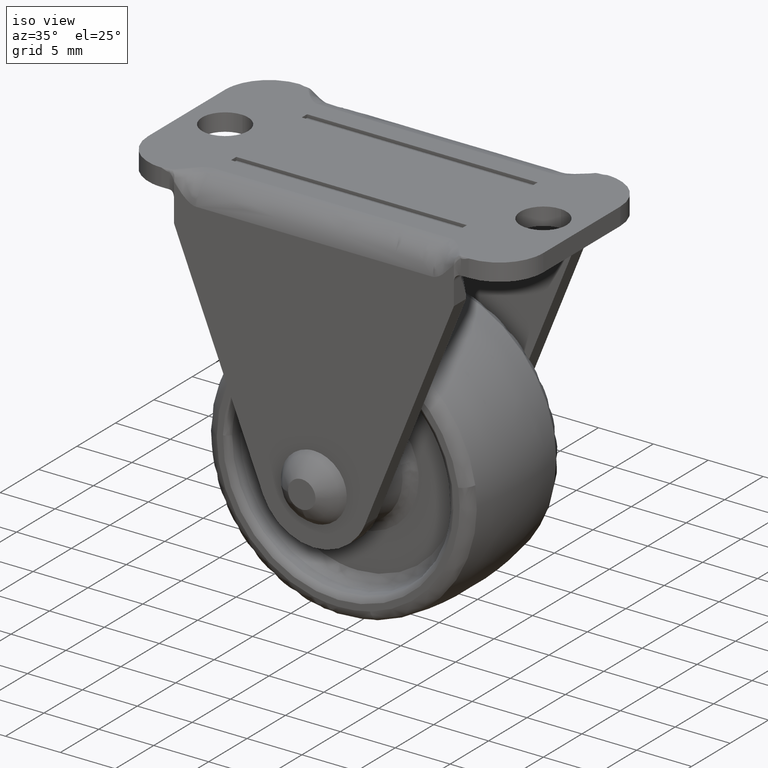
[diagram: clean part render]
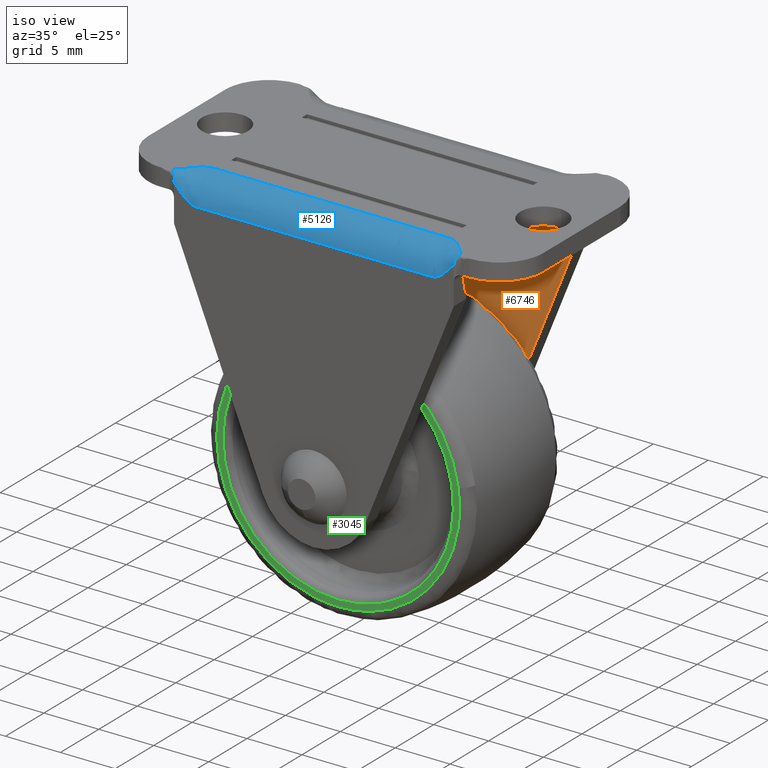
[diagram: same view with three faces highlighted in distinct colors, each labeled with its STEP entity id]
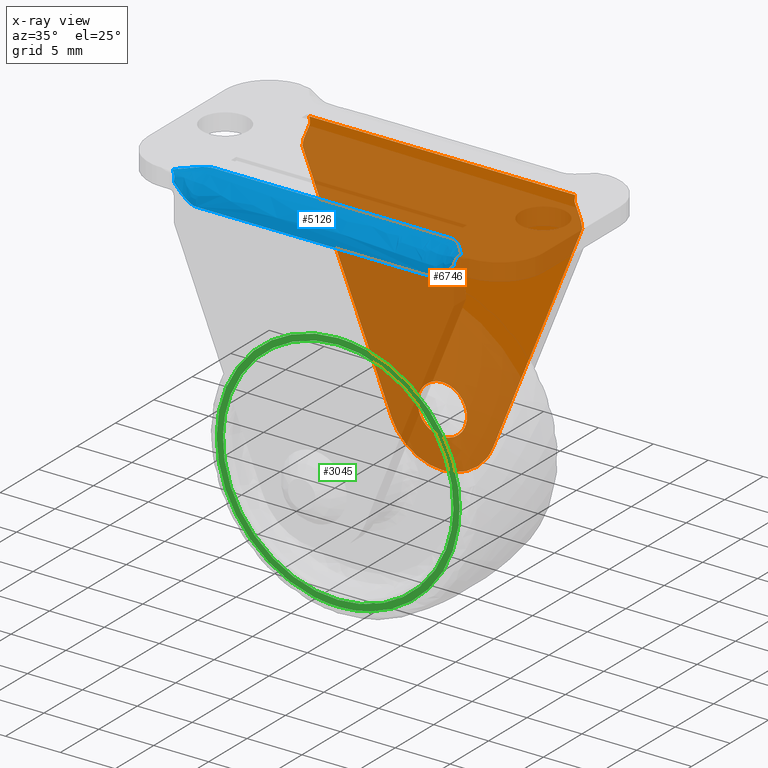
[diagram: x-ray of the same camera — body ghosted, the three highlighted faces saturated]
A machine part, iso view with three faces highlighted in distinct colors.
The next image is the same camera in x-ray (body ghosted, the three faces saturated) — at least one of them is partly hidden behind the body in this view.
Their STEP definitions:

[orange] entity #6746 — the highlighted face is a freeform B-spline surface patch.
#3757=CARTESIAN_POINT('',(0.0,7.550002999999999,2.250000000000000));
#3758=VERTEX_POINT('',#3757);
#3759=CARTESIAN_POINT('',(-2.243064283186967,7.550003000000139,0.176529378512446));
#3760=VERTEX_POINT('',#3759);
#3761=CARTESIAN_POINT('',(0.0,7.550002999999999,2.250000000000000));
#3762=CARTESIAN_POINT('',(-2.079881942443490,7.550002999999999,2.250000000000000));
#3763=CARTESIAN_POINT('',(-2.243064283186967,7.550003000000140,0.176529378512446));
#3771=(BOUNDED_CURVE()B_SPLINE_CURVE(2,(#3761,#3762,#3763),.UNSPECIFIED.,.F.,.U.)B_SPLINE_CURVE_WITH_KNOTS((3,3),(0.0,0.236331574757071),.UNSPECIFIED.)CURVE()GEOMETRIC_REPRESENTATION_ITEM()RATIONAL_B_SPLINE_CURVE((1.0,0.723120337448598,0.969723928249029))REPRESENTATION_ITEM(''));
#3772=EDGE_CURVE('',#3758,#3760,#3771,.T.);
#3813=CARTESIAN_POINT('',(2.243064283186967,7.550003000000140,-0.176529378512446));
#3814=VERTEX_POINT('',#3813);
#3820=CARTESIAN_POINT('',(2.243064283186967,7.550003000000140,-0.176529378512446));
#3821=CARTESIAN_POINT('',(2.250000000000000,7.550003000000000,-0.088400939007160));
#3822=CARTESIAN_POINT('',(2.250000000000000,7.550002999999999,0.0));
#3823=CARTESIAN_POINT('',(2.250000000000000,7.550002999999999,2.250000000000000));
#3824=CARTESIAN_POINT('',(0.0,7.550002999999999,2.250000000000000));
#3832=(BOUNDED_CURVE()B_SPLINE_CURVE(2,(#3820,#3821,#3822,#3823,#3824),.UNSPECIFIED.,.F.,.U.)B_SPLINE_CURVE_WITH_KNOTS((3,2,3),(0.736331574757071,0.750000000000000,1.0),.UNSPECIFIED.)CURVE()GEOMETRIC_REPRESENTATION_ITEM()RATIONAL_B_SPLINE_CURVE((0.969723928249029,0.983986443737950,1.0,0.707106781186547,1.0))REPRESENTATION_ITEM(''));
#3833=EDGE_CURVE('',#3814,#3758,#3832,.T.);
#3860=CARTESIAN_POINT('',(0.0,7.550002999999999,-2.250000000000000));
#3861=VERTEX_POINT('',#3860);
#3862=CARTESIAN_POINT('',(-2.243064283186967,7.550003000000140,0.176529378512446));
#3863=CARTESIAN_POINT('',(-2.250000000000000,7.550003000000000,0.088400939007159));
#3864=CARTESIAN_POINT('',(-2.250000000000000,7.550002999999999,0.0));
#3865=CARTESIAN_POINT('',(-2.250000000000000,7.550002999999999,-2.250000000000000));
#3866=CARTESIAN_POINT('',(0.0,7.550002999999999,-2.250000000000000));
#3874=(BOUNDED_CURVE()B_SPLINE_CURVE(2,(#3862,#3863,#3864,#3865,#3866),.UNSPECIFIED.,.F.,.U.)B_SPLINE_CURVE_WITH_KNOTS((3,2,3),(0.236331574757071,0.250000000000000,0.500000000000000),.UNSPECIFIED.)CURVE()GEOMETRIC_REPRESENTATION_ITEM()RATIONAL_B_SPLINE_CURVE((0.969723928249029,0.983986443737950,1.0,0.707106781186547,1.0))REPRESENTATION_ITEM(''));
#3875=EDGE_CURVE('',#3760,#3861,#3874,.T.);
#3877=CARTESIAN_POINT('',(0.0,7.550002999999999,-2.250000000000000));
#3878=CARTESIAN_POINT('',(2.079881942443490,7.550002999999999,-2.250000000000001));
#3879=CARTESIAN_POINT('',(2.243064283186967,7.550003000000140,-0.176529378512446));
#3887=(BOUNDED_CURVE()B_SPLINE_CURVE(2,(#3877,#3878,#3879),.UNSPECIFIED.,.F.,.U.)B_SPLINE_CURVE_WITH_KNOTS((3,3),(0.500000000000000,0.736331574757071),.UNSPECIFIED.)CURVE()GEOMETRIC_REPRESENTATION_ITEM()RATIONAL_B_SPLINE_CURVE((1.0,0.723120337448598,0.969723928249029))REPRESENTATION_ITEM(''));
#3888=EDGE_CURVE('',#3861,#3814,#3887,.T.);
#4400=CARTESIAN_POINT('',(12.050000000000001,7.550002999999999,20.399999999999750));
#4401=VERTEX_POINT('',#4400);
#4415=CARTESIAN_POINT('',(12.750000000000000,7.550002999999999,18.300030347964199));
#4416=VERTEX_POINT('',#4415);
#4417=CARTESIAN_POINT('',(12.750000000000000,7.550002999999999,18.300030347964199));
#4418=CARTESIAN_POINT('',(12.716666666666660,7.550002999999999,18.475027818967199));
#4419=CARTESIAN_POINT('',(12.683333333333341,7.550002999999999,18.650025289970149));
#4420=CARTESIAN_POINT('',(12.650000000000000,7.550002999999999,18.825022760973098));
#4421=CARTESIAN_POINT('',(12.616666666666660,7.550002999999999,19.000020231976048));
#4422=CARTESIAN_POINT('',(12.516666666666660,7.550002999999999,19.175017702979002));
#4423=CARTESIAN_POINT('',(12.449999999999999,7.550002999999999,19.350015173981951));
#4424=CARTESIAN_POINT('',(12.383333333333340,7.550002999999999,19.525012644984951));
#4425=CARTESIAN_POINT('',(12.316666666666659,7.550002999999999,19.700010115987901));
#4426=CARTESIAN_POINT('',(12.250000000000000,7.550002999999999,19.875007586990900));
#4427=CARTESIAN_POINT('',(12.183333333333341,7.550002999999999,20.050005057993850));
#4428=CARTESIAN_POINT('',(12.050000000000001,7.550002999999999,20.225002528996800));
#4429=CARTESIAN_POINT('',(12.050000000000001,7.550002999999999,20.399999999999750));
#4430=B_SPLINE_CURVE_WITH_KNOTS('',3,(#4417,#4418,#4419,#4420,#4421,#4422,#4423,#4424,#4425,#4426,#4427,#4428,#4429),.UNSPECIFIED.,.F.,.U.,(4,3,3,3,4),(0.0,0.249999999999987,0.499999999999974,0.750000000000013,1.0),.UNSPECIFIED.);
#4431=EDGE_CURVE('',#4416,#4401,#4430,.T.);
#4490=CARTESIAN_POINT('',(12.106813741931679,7.550002999999999,20.899999999999999));
#4491=VERTEX_POINT('',#4490);
#4506=CARTESIAN_POINT('',(12.050000000000001,7.550002999999999,20.399999999999750));
#4507=CARTESIAN_POINT('',(12.050061298596090,7.550002999999999,20.666828715081898));
#4508=CARTESIAN_POINT('',(12.106813741931679,7.550002999999999,20.899999999999999));
#4509=QUASI_UNIFORM_CURVE('',2,(#4506,#4507,#4508),.UNSPECIFIED.,.F.,.U.);
#4510=EDGE_CURVE('',#4401,#4491,#4509,.T.);
#4756=CARTESIAN_POINT('',(-12.750000000000000,7.550002999999999,18.299998999999900));
#4757=VERTEX_POINT('',#4756);
#4776=CARTESIAN_POINT('',(-12.050000000000120,7.550002999999999,20.399999999999700));
#4777=VERTEX_POINT('',#4776);
#4778=CARTESIAN_POINT('',(-12.050000000000120,7.550002999999999,20.399999999999700));
#4779=CARTESIAN_POINT('',(-12.050000000000001,7.550002999999999,20.224999916666398));
#4780=CARTESIAN_POINT('',(-12.183333333333421,7.550002999999999,20.049999833333050));
#4781=CARTESIAN_POINT('',(-12.250000000000000,7.550002999999999,19.874999749999748));
#4782=CARTESIAN_POINT('',(-12.316666666666761,7.550002999999999,19.699999666666450));
#4783=CARTESIAN_POINT('',(-12.383333333333439,7.550002999999999,19.524999583333152));
#4784=CARTESIAN_POINT('',(-12.449999999999999,7.550002999999999,19.349999499999850));
#4785=CARTESIAN_POINT('',(-12.516666666666760,7.550002999999999,19.174999416666498));
#4786=CARTESIAN_POINT('',(-12.616666666666781,7.550002999999999,18.999999333333200));
#4787=CARTESIAN_POINT('',(-12.650000000000000,7.550002999999999,18.824999249999902));
#4788=CARTESIAN_POINT('',(-12.683333333333421,7.550002999999999,18.649999166666600));
#4789=CARTESIAN_POINT('',(-12.716666666666759,7.550002999999999,18.474999083333248));
#4790=CARTESIAN_POINT('',(-12.750000000000000,7.550002999999999,18.299998999999900));
#4791=B_SPLINE_CURVE_WITH_KNOTS('',3,(#4778,#4779,#4780,#4781,#4782,#4783,#4784,#4785,#4786,#4787,#4788,#4789,#4790),.UNSPECIFIED.,.F.,.U.,(4,3,3,3,4),(0.0,0.250000000000026,0.500000000000000,0.749999999999974,1.0),.UNSPECIFIED.);
#4792=EDGE_CURVE('',#4777,#4757,#4791,.T.);
#4850=CARTESIAN_POINT('',(-12.106813741919900,7.550002999999999,20.899999999999999));
#4851=VERTEX_POINT('',#4850);
#4878=CARTESIAN_POINT('',(-12.106813741919900,7.550002999999999,20.899999999999999));
#4879=CARTESIAN_POINT('',(-12.050061298595869,7.550002999999999,20.666828715092301));
#4880=CARTESIAN_POINT('',(-12.050000000000120,7.550002999999999,20.399999999999700));
#4881=QUASI_UNIFORM_CURVE('',2,(#4878,#4879,#4880),.UNSPECIFIED.,.F.,.U.);
#4882=EDGE_CURVE('',#4851,#4777,#4881,.T.);
#5980=CARTESIAN_POINT('',(-4.638816999999910,7.550002999999999,-1.865843000000095));
#5981=VERTEX_POINT('',#5980);
#5982=CARTESIAN_POINT('',(-12.750000000000000,7.550002999999999,18.299998999999900));
#5983=CARTESIAN_POINT('',(-4.638816999999910,7.550002999999999,-1.865843000000095));
#5984=QUASI_UNIFORM_CURVE('',1,(#5982,#5983),.UNSPECIFIED.,.F.,.U.);
#5985=EDGE_CURVE('',#4757,#5981,#5984,.T.);
#6014=CARTESIAN_POINT('',(4.638817896110660,7.550002999999999,-1.865842578226655));
#6015=VERTEX_POINT('',#6014);
#6016=CARTESIAN_POINT('',(4.638817896110660,7.550002999999999,-1.865842578226655));
#6017=CARTESIAN_POINT('',(12.750000000000000,7.550002999999999,18.300030347964199));
#6018=QUASI_UNIFORM_CURVE('',1,(#6016,#6017),.UNSPECIFIED.,.F.,.U.);
#6019=EDGE_CURVE('',#6015,#4416,#6018,.T.);
#6063=CARTESIAN_POINT('',(-4.638816999999910,7.550002999999999,-1.865843000000095));
#6064=CARTESIAN_POINT('',(-3.378184820104728,7.550002999999999,-5.000000245157066));
#6065=CARTESIAN_POINT('',(0.000000362853227,7.550002999999999,-4.999999999999987));
#6066=CARTESIAN_POINT('',(3.378185545811182,7.550002999999999,-4.999999754842907));
#6067=CARTESIAN_POINT('',(4.638817896110658,7.550002999999999,-1.865842578226655));
#6075=(BOUNDED_CURVE()B_SPLINE_CURVE(2,(#6063,#6064,#6065,#6066,#6067),.UNSPECIFIED.,.F.,.U.)B_SPLINE_CURVE_WITH_KNOTS((3,2,3),(0.0,0.500000000000000,1.0),.UNSPECIFIED.)CURVE()GEOMETRIC_REPRESENTATION_ITEM()RATIONAL_B_SPLINE_CURVE((1.0,0.828603820584280,1.0,0.828603820584280,1.0))REPRESENTATION_ITEM(''));
#6076=EDGE_CURVE('',#5981,#6015,#6075,.T.);
#6166=CARTESIAN_POINT('',(-12.106813741919900,7.550002999999999,20.899999999999999));
#6167=CARTESIAN_POINT('',(12.106813741931679,7.550002999999999,20.899999999999999));
#6168=QUASI_UNIFORM_CURVE('',1,(#6166,#6167),.UNSPECIFIED.,.F.,.U.);
#6169=EDGE_CURVE('',#4851,#4491,#6168,.T.);
#6725=CARTESIAN_POINT('',(-14.023724950576050,7.550002999999999,-6.293704857267706));
#6726=CARTESIAN_POINT('',(-14.023724950576050,7.550002999999999,22.193703699447550));
#6727=CARTESIAN_POINT('',(14.023725634539350,7.550002999999999,-6.293704857267706));
#6728=CARTESIAN_POINT('',(14.023725634539350,7.550002999999999,22.193703699447550));
#6729=B_SPLINE_SURFACE_WITH_KNOTS('',1,1,((#6725,#6727),(#6726,#6728)),.UNSPECIFIED.,.F.,.F.,.U.,(2,2),(2,2),(0.0,28.487408556715259),(0.0,28.047450585115410),.UNSPECIFIED.);
#6730=ORIENTED_EDGE('',*,*,#6019,.T.);
#6731=ORIENTED_EDGE('',*,*,#4431,.T.);
#6732=ORIENTED_EDGE('',*,*,#4510,.T.);
#6733=ORIENTED_EDGE('',*,*,#6169,.F.);
#6734=ORIENTED_EDGE('',*,*,#4882,.T.);
#6735=ORIENTED_EDGE('',*,*,#4792,.T.);
#6736=ORIENTED_EDGE('',*,*,#5985,.T.);
#6737=ORIENTED_EDGE('',*,*,#6076,.T.);
#6738=EDGE_LOOP('',(#6730,#6731,#6732,#6733,#6734,#6735,#6736,#6737));
#6739=FACE_OUTER_BOUND('',#6738,.T.);
#6740=ORIENTED_EDGE('',*,*,#3888,.F.);
#6741=ORIENTED_EDGE('',*,*,#3875,.F.);
#6742=ORIENTED_EDGE('',*,*,#3772,.F.);
#6743=ORIENTED_EDGE('',*,*,#3833,.F.);
#6744=EDGE_LOOP('',(#6740,#6741,#6742,#6743));
#6745=FACE_BOUND('',#6744,.T.);
#6746=ADVANCED_FACE('',(#6739,#6745),#6729,.F.);

[blue] entity #5126 — the highlighted face is a freeform B-spline surface patch.
#4971=CARTESIAN_POINT('',(13.119193356339739,-8.765342525882272,22.500000000000000));
#4972=VERTEX_POINT('',#4971);
#4973=CARTESIAN_POINT('',(12.750010098916700,-9.149999999959778,21.700051119865051));
#4974=VERTEX_POINT('',#4973);
#4975=CARTESIAN_POINT('',(13.119193356339739,-8.765342525882272,22.500000000000000));
#4976=CARTESIAN_POINT('',(13.106264940669231,-8.787804500059718,22.496881243281951));
#4977=CARTESIAN_POINT('',(13.078835623221281,-8.835460503387800,22.490264394764520));
#4978=CARTESIAN_POINT('',(13.025563949204910,-8.891604308115408,22.444673762511659));
#4979=CARTESIAN_POINT('',(12.964703336439060,-8.925338805306527,22.391132943694249));
#4980=CARTESIAN_POINT('',(12.906280853361730,-8.953884793367156,22.331644475958729));
#4981=CARTESIAN_POINT('',(12.861227089343091,-8.988466214337796,22.265223782407620));
#4982=CARTESIAN_POINT('',(12.822134076153770,-9.020572426417933,22.194541004975630));
#4983=CARTESIAN_POINT('',(12.792954787310590,-9.054463846548313,22.117479034663830));
#4984=CARTESIAN_POINT('',(12.773925178751149,-9.088782634563653,22.032891903292871));
#4985=CARTESIAN_POINT('',(12.760121559183069,-9.120349544626690,21.932932896830469));
#4986=CARTESIAN_POINT('',(12.751606499225041,-9.144736791061142,21.820253420873811));
#4987=CARTESIAN_POINT('',(12.750549732196300,-9.148220809730784,21.740691985035198));
#4988=CARTESIAN_POINT('',(12.750010098916700,-9.149999999959778,21.700051119865051));
#4989=B_SPLINE_CURVE_WITH_KNOTS('',3,(#4975,#4976,#4977,#4978,#4979,#4980,#4981,#4982,#4983,#4984,#4985,#4986,#4987,#4988),.UNSPECIFIED.,.F.,.U.,(4,1,1,1,1,1,1,1,1,1,1,4),(0.000016216813288,0.074501459441041,0.158046358888956,0.250892721819858,0.327604096867035,0.411557584784858,0.502142679317179,0.578043451525392,0.667934094113139,0.770568315289101,0.882803924873207,1.000000000000000),.UNSPECIFIED.);
#4990=EDGE_CURVE('',#4972,#4974,#4989,.T.);
#5014=CARTESIAN_POINT('',(-13.276623676621041,-8.942451636198626,22.500000000000000));
#5015=CARTESIAN_POINT('',(-13.276623676621041,-9.150000000000079,22.499999999999808));
#5016=CARTESIAN_POINT('',(-13.276623676621041,-9.150000000000002,22.292451636198471));
#5017=CARTESIAN_POINT('',(-13.101082451080719,-8.744967757465805,22.500000000000000));
#5018=CARTESIAN_POINT('',(-13.101082451080723,-9.150000000000079,22.499999999999808));
#5019=CARTESIAN_POINT('',(-13.101082451080719,-9.150000000000002,22.094967757465550));
#5020=CARTESIAN_POINT('',(-12.925541225540391,-8.547483878732949,22.500000000000000));
#5021=CARTESIAN_POINT('',(-12.925541225540407,-9.150000000000082,22.499999999999808));
#5022=CARTESIAN_POINT('',(-12.925541225540391,-9.150000000000002,21.897483878732739));
#5023=CARTESIAN_POINT('',(-12.750000000000000,-8.350000000000090,22.500000000000000));
#5024=CARTESIAN_POINT('',(-12.750000000000087,-9.150000000000082,22.499999999999808));
#5025=CARTESIAN_POINT('',(-12.750000000000000,-9.150000000000000,21.699999999999999));
#5026=CARTESIAN_POINT('',(-12.083333333333419,-7.600000000000090,22.500000000000000));
#5027=CARTESIAN_POINT('',(-12.083333333333425,-9.150000000000082,22.499999999999808));
#5028=CARTESIAN_POINT('',(-12.083333333333419,-9.150000000000000,20.949999999999999));
#5029=CARTESIAN_POINT('',(-11.416666666666760,-6.850000000000090,22.500000000000000));
#5030=CARTESIAN_POINT('',(-11.416666666666758,-9.150000000000082,22.499999999999808));
#5031=CARTESIAN_POINT('',(-11.416666666666760,-9.150000000000000,20.199999999999999));
#5032=CARTESIAN_POINT('',(-10.750000000000000,-6.850000000000090,22.500000000000000));
#5033=CARTESIAN_POINT('',(-10.750000000000082,-9.150000000000082,22.499999999999808));
#5034=CARTESIAN_POINT('',(-10.750000000000000,-9.150000000000000,20.199999999999999));
#5035=CARTESIAN_POINT('',(-3.583333333333430,-6.850000000000090,22.500000000000000));
#5036=CARTESIAN_POINT('',(-3.583333333333430,-9.150000000000082,22.499999999999808));
#5037=CARTESIAN_POINT('',(-3.583333333333430,-9.150000000000000,20.199999999999999));
#5038=CARTESIAN_POINT('',(3.583333333333240,-6.850000000000090,22.500000000000000));
#5039=CARTESIAN_POINT('',(3.583333333333239,-9.150000000000082,22.499999999999808));
#5040=CARTESIAN_POINT('',(3.583333333333240,-9.150000000000000,20.199999999999999));
#5041=CARTESIAN_POINT('',(10.750000000000000,-6.850000000000090,22.500000000000000));
#5042=CARTESIAN_POINT('',(10.749999999999899,-9.150000000000082,22.499999999999808));
#5043=CARTESIAN_POINT('',(10.750000000000000,-9.150000000000000,20.199999999999999));
#5044=CARTESIAN_POINT('',(11.416666666666600,-6.850000000000090,22.500000000000000));
#5045=CARTESIAN_POINT('',(11.416666666666591,-9.150000000000082,22.499999999999808));
#5046=CARTESIAN_POINT('',(11.416666666666600,-9.150000000000000,20.199999999999999));
#5047=CARTESIAN_POINT('',(12.083333333333300,-7.600000000000090,22.500000000000000));
#5048=CARTESIAN_POINT('',(12.083333333333297,-9.150000000000082,22.499999999999808));
#5049=CARTESIAN_POINT('',(12.083333333333300,-9.150000000000000,20.949999999999999));
#5050=CARTESIAN_POINT('',(12.750000000000000,-8.350000000000090,22.500000000000000));
#5051=CARTESIAN_POINT('',(12.749999999999993,-9.150000000000082,22.499999999999808));
#5052=CARTESIAN_POINT('',(12.750000000000000,-9.150000000000000,21.699999999999999));
#5053=CARTESIAN_POINT('',(12.925541225540520,-8.547483878733175,22.500000000000000));
#5054=CARTESIAN_POINT('',(12.925541225540524,-9.150000000000082,22.499999999999808));
#5055=CARTESIAN_POINT('',(12.925541225540520,-9.150000000000000,21.897483878732960));
#5056=CARTESIAN_POINT('',(13.101082451081050,-8.744967757466256,22.500000000000000));
#5057=CARTESIAN_POINT('',(13.101082451081052,-9.150000000000082,22.499999999999808));
#5058=CARTESIAN_POINT('',(13.101082451081050,-9.150000000000000,22.094967757466002));
#5059=CARTESIAN_POINT('',(13.276623676621581,-8.942451636199305,22.500000000000000));
#5060=CARTESIAN_POINT('',(13.276623676621575,-9.150000000000082,22.499999999999808));
#5061=CARTESIAN_POINT('',(13.276623676621581,-9.150000000000000,22.292451636199150));
#5069=(BOUNDED_SURFACE()B_SPLINE_SURFACE(2,3,((#5014,#5017,#5020,#5023,#5026,#5029,#5032,#5035,#5038,#5041,#5044,#5047,#5050,#5053,#5056,#5059),(#5015,#5018,#5021,#5024,#5027,#5030,#5033,#5036,#5039,#5042,#5045,#5048,#5051,#5054,#5057,#5060),(#5016,#5019,#5022,#5025,#5028,#5031,#5034,#5037,#5040,#5043,#5046,#5049,#5052,#5055,#5058,#5061)),.UNSPECIFIED.,.F.,.F.,.U.)B_SPLINE_SURFACE_WITH_KNOTS((3,3),(4,3,3,3,3,4),(0.0,3.810764773832403),(0.0,0.792673601182967,3.803072245881611,36.164857676392039,39.175256321090842,39.967929922274763),.UNSPECIFIED.)GEOMETRIC_REPRESENTATION_ITEM()RATIONAL_B_SPLINE_SURFACE(((1.0,1.0,1.0,1.0,1.0,1.0,1.0,1.0,1.0,1.0,1.0,1.0,1.0,1.0,1.0,1.0),(0.707106781186548,0.707106781186548,0.707106781186548,0.707106781186548,0.707106781186548,0.707106781186548,0.707106781186548,0.707106781186548,0.707106781186548,0.707106781186548,0.707106781186548,0.707106781186548,0.707106781186548,0.707106781186548,0.707106781186548,0.707106781186548),(1.0,1.0,1.0,1.0,1.0,1.0,1.0,1.0,1.0,1.0,1.0,1.0,1.0,1.0,1.0,1.0)))REPRESENTATION_ITEM('')SURFACE());
#5070=CARTESIAN_POINT('',(-13.119193356339840,-8.765342525886499,22.500000000000000));
#5071=VERTEX_POINT('',#5070);
#5072=CARTESIAN_POINT('',(-12.750010098916800,-9.149999999959778,21.700051119865002));
#5073=VERTEX_POINT('',#5072);
#5074=CARTESIAN_POINT('',(-13.119193356339840,-8.765342525886499,22.500000000000000));
#5075=CARTESIAN_POINT('',(-13.106801906824741,-8.786145818230748,22.497285528466950));
#5076=CARTESIAN_POINT('',(-13.079946450110089,-8.831231900887396,22.491402570813779));
#5077=CARTESIAN_POINT('',(-13.023135791794440,-8.884723522762684,22.448319867514680));
#5078=CARTESIAN_POINT('',(-12.976783359034650,-8.918867437544808,22.401263724190720));
#5079=CARTESIAN_POINT('',(-12.927243333831800,-8.944469772226219,22.353703058641148));
#5080=CARTESIAN_POINT('',(-12.875695246646000,-8.976608389229115,22.291059934356198));
#5081=CARTESIAN_POINT('',(-12.824685730624800,-9.017448545175794,22.202983038629281));
#5082=CARTESIAN_POINT('',(-12.786263939065471,-9.060599116215748,22.100436478696160));
#5083=CARTESIAN_POINT('',(-12.766724225657560,-9.096184848787569,22.003233962996749));
#5084=CARTESIAN_POINT('',(-12.755854935774170,-9.125040217210151,21.901516867157291));
#5085=CARTESIAN_POINT('',(-12.750835038789029,-9.145450163904954,21.799959301366339));
#5086=CARTESIAN_POINT('',(-12.750277897939510,-9.148522993343912,21.732484166523928));
#5087=CARTESIAN_POINT('',(-12.750010098916800,-9.149999999959778,21.700051119865002));
#5088=B_SPLINE_CURVE_WITH_KNOTS('',3,(#5074,#5075,#5076,#5077,#5078,#5079,#5080,#5081,#5082,#5083,#5084,#5085,#5086,#5087),.UNSPECIFIED.,.F.,.U.,(4,1,1,1,1,1,1,1,1,1,1,4),(0.0,0.069566518974084,0.150768530898779,0.250270168591659,0.284475715322636,0.362337147103655,0.501715481993294,0.599449170363430,0.701411638783329,0.805066694874106,0.906302062303482,1.0),.UNSPECIFIED.);
#5089=EDGE_CURVE('',#5071,#5073,#5088,.T.);
#5090=ORIENTED_EDGE('',*,*,#5089,.T.);
#5091=CARTESIAN_POINT('',(12.750010098916700,-9.149999999959778,21.700051119865051));
#5092=CARTESIAN_POINT('',(12.083342904202070,-9.149999999959778,20.950051119865051));
#5093=CARTESIAN_POINT('',(11.416675709487430,-9.149999999959778,20.200051119865051));
#5094=CARTESIAN_POINT('',(10.750008514772899,-9.149999999959778,20.200051119865051));
#5095=CARTESIAN_POINT('',(3.583336171590839,-9.149999999959778,20.200051119865030));
#5096=CARTESIAN_POINT('',(-3.583336171591128,-9.149999999959778,20.200051119865019));
#5097=CARTESIAN_POINT('',(-10.750008514773000,-9.149999999959778,20.200051119865002));
#5098=CARTESIAN_POINT('',(-11.416675709487690,-9.149999999959778,20.200051119865002));
#5099=CARTESIAN_POINT('',(-12.083342904202290,-9.149999999959778,20.950051119865002));
#5100=CARTESIAN_POINT('',(-12.750010098916800,-9.149999999959778,21.700051119865002));
#5101=B_SPLINE_CURVE_WITH_KNOTS('',3,(#5091,#5092,#5093,#5094,#5095,#5096,#5097,#5098,#5099,#5100),.UNSPECIFIED.,.F.,.U.,(4,3,3,4),(0.026413536937680,0.100701609574911,0.899298390425092,0.973586463062318),.UNSPECIFIED.);
#5102=EDGE_CURVE('',#4974,#5073,#5101,.T.);
#5103=ORIENTED_EDGE('',*,*,#5102,.F.);
#5104=ORIENTED_EDGE('',*,*,#4990,.F.);
#5105=CARTESIAN_POINT('',(-13.119193356339840,-8.765342525886499,22.500000000000000));
#5106=CARTESIAN_POINT('',(-12.996128904229939,-8.626895017258692,22.500000000000000));
#5107=CARTESIAN_POINT('',(-12.873064452114990,-8.488447508629392,22.500000000000000));
#5108=CARTESIAN_POINT('',(-12.750000000000000,-8.350000000000090,22.500000000000000));
#5109=CARTESIAN_POINT('',(-12.083333333333419,-7.600000000000090,22.500000000000000));
#5110=CARTESIAN_POINT('',(-11.416666666666760,-6.850000000000090,22.500000000000000));
#5111=CARTESIAN_POINT('',(-10.750000000000000,-6.850000000000090,22.500000000000000));
#5112=CARTESIAN_POINT('',(-3.583333333333430,-6.850000000000090,22.500000000000000));
#5113=CARTESIAN_POINT('',(3.583333333333240,-6.850000000000090,22.500000000000000));
#5114=CARTESIAN_POINT('',(10.750000000000000,-6.850000000000090,22.500000000000000));
#5115=CARTESIAN_POINT('',(11.416666666666600,-6.850000000000090,22.500000000000000));
#5116=CARTESIAN_POINT('',(12.083333333333300,-7.600000000000090,22.500000000000000));
#5117=CARTESIAN_POINT('',(12.750000000000000,-8.350000000000090,22.500000000000000));
#5118=CARTESIAN_POINT('',(12.873064452113240,-8.488447508627488,22.500000000000000));
#5119=CARTESIAN_POINT('',(12.996128904226490,-8.626895017254881,22.500000000000000));
#5120=CARTESIAN_POINT('',(13.119193356339730,-8.765342525882263,22.500000000000000));
#5121=B_SPLINE_CURVE_WITH_KNOTS('',3,(#5105,#5106,#5107,#5108,#5109,#5110,#5111,#5112,#5113,#5114,#5115,#5116,#5117,#5118,#5119,#5120),.UNSPECIFIED.,.F.,.U.,(4,3,3,3,3,4),(0.012700205501018,0.026413536937680,0.100701609574907,0.899298390425088,0.973586463062318,0.987299794498792),.UNSPECIFIED.);
#5122=EDGE_CURVE('',#5071,#4972,#5121,.T.);
#5123=ORIENTED_EDGE('',*,*,#5122,.F.);
#5124=EDGE_LOOP('',(#5090,#5103,#5104,#5123));
#5125=FACE_OUTER_BOUND('',#5124,.T.);
#5126=ADVANCED_FACE('',(#5125),#5069,.T.);

[green] entity #3045 — the highlighted face is a freeform B-spline surface patch.
#1235=CARTESIAN_POINT('',(10.496683986140299,-5.999999999999920,-0.263866002205369));
#1236=VERTEX_POINT('',#1235);
#1237=CARTESIAN_POINT('',(0.0,-5.999999999999920,10.500000000000000));
#1238=VERTEX_POINT('',#1237);
#1239=CARTESIAN_POINT('',(10.496683986140301,-5.999999999999920,-0.263866002205369));
#1240=CARTESIAN_POINT('',(10.500000000000000,-5.999999999999919,-0.131953837379339));
#1241=CARTESIAN_POINT('',(10.500000000000000,-5.999999999999920,-8.061993E-016));
#1242=CARTESIAN_POINT('',(10.500000000000000,-5.999999999999919,10.500000000000000));
#1243=CARTESIAN_POINT('',(0.0,-5.999999999999920,10.500000000000000));
#1251=(BOUNDED_CURVE()B_SPLINE_CURVE(2,(#1239,#1240,#1241,#1242,#1243),.UNSPECIFIED.,.F.,.U.)B_SPLINE_CURVE_WITH_KNOTS((3,2,3),(0.245579891767013,0.250000000000000,0.500000000000000),.UNSPECIFIED.)CURVE()GEOMETRIC_REPRESENTATION_ITEM()RATIONAL_B_SPLINE_CURVE((0.989826157675260,0.994821521088547,1.0,0.707106781186547,1.0))REPRESENTATION_ITEM(''));
#1252=EDGE_CURVE('',#1236,#1238,#1251,.T.);
#1254=CARTESIAN_POINT('',(-10.496683986140299,-5.999999999999920,0.263866002205368));
#1255=VERTEX_POINT('',#1254);
#1256=CARTESIAN_POINT('',(0.0,-5.999999999999920,10.500000000000000));
#1257=CARTESIAN_POINT('',(-10.239367699733279,-5.999999999999919,10.500000000000000));
#1258=CARTESIAN_POINT('',(-10.496683986140301,-5.999999999999920,0.263866002205368));
#1266=(BOUNDED_CURVE()B_SPLINE_CURVE(2,(#1256,#1257,#1258),.UNSPECIFIED.,.F.,.U.)B_SPLINE_CURVE_WITH_KNOTS((3,3),(0.500000000000000,0.745579891767014),.UNSPECIFIED.)CURVE()GEOMETRIC_REPRESENTATION_ITEM()RATIONAL_B_SPLINE_CURVE((1.0,0.712285260098000,0.989826157675261))REPRESENTATION_ITEM(''));
#1267=EDGE_CURVE('',#1238,#1255,#1266,.T.);
#1325=CARTESIAN_POINT('',(0.0,-5.999999999999920,-10.500000000000000));
#1326=VERTEX_POINT('',#1325);
#1327=CARTESIAN_POINT('',(0.0,-5.999999999999920,-10.500000000000000));
#1328=CARTESIAN_POINT('',(10.239367699733249,-5.999999999999921,-10.500000000000004));
#1329=CARTESIAN_POINT('',(10.496683986140301,-5.999999999999920,-0.263866002205369));
#1337=(BOUNDED_CURVE()B_SPLINE_CURVE(2,(#1327,#1328,#1329),.UNSPECIFIED.,.F.,.U.)B_SPLINE_CURVE_WITH_KNOTS((3,3),(0.0,0.245579891767013),.UNSPECIFIED.)CURVE()GEOMETRIC_REPRESENTATION_ITEM()RATIONAL_B_SPLINE_CURVE((1.0,0.712285260098001,0.989826157675260))REPRESENTATION_ITEM(''));
#1338=EDGE_CURVE('',#1326,#1236,#1337,.T.);
#1344=CARTESIAN_POINT('',(-10.496683986140303,-5.999999999999920,0.263866002205368));
#1345=CARTESIAN_POINT('',(-10.500000000000000,-5.999999999999921,0.131953837379338));
#1346=CARTESIAN_POINT('',(-10.500000000000000,-5.999999999999920,-8.061993E-016));
#1347=CARTESIAN_POINT('',(-10.500000000000000,-5.999999999999919,-10.500000000000000));
#1348=CARTESIAN_POINT('',(0.0,-5.999999999999920,-10.500000000000000));
#1356=(BOUNDED_CURVE()B_SPLINE_CURVE(2,(#1344,#1345,#1346,#1347,#1348),.UNSPECIFIED.,.F.,.U.)B_SPLINE_CURVE_WITH_KNOTS((3,2,3),(0.745579891767013,0.750000000000000,1.0),.UNSPECIFIED.)CURVE()GEOMETRIC_REPRESENTATION_ITEM()RATIONAL_B_SPLINE_CURVE((0.989826157675260,0.994821521088547,1.0,0.707106781186547,1.0))REPRESENTATION_ITEM(''));
#1357=EDGE_CURVE('',#1255,#1326,#1356,.T.);
#2692=CARTESIAN_POINT('',(2.914429525570951,-5.999999999999920,-10.675023510898979));
#2693=VERTEX_POINT('',#2692);
#2694=CARTESIAN_POINT('',(10.940137453078490,-5.999999999999920,1.662353404724365));
#2695=VERTEX_POINT('',#2694);
#2696=CARTESIAN_POINT('',(2.914429525570951,-5.999999999999921,-10.675023510898976));
#2697=CARTESIAN_POINT('',(11.065714000000101,-5.999999999999920,-8.449609752833284));
#2698=CARTESIAN_POINT('',(11.065714000000099,-5.999999999999920,-8.061993E-016));
#2699=CARTESIAN_POINT('',(11.065714000000099,-5.999999999999920,0.835919818084019));
#2700=CARTESIAN_POINT('',(10.940137453078492,-5.999999999999920,1.662353404724365));
#2708=(BOUNDED_CURVE()B_SPLINE_CURVE(2,(#2696,#2697,#2698,#2699,#2700),.UNSPECIFIED.,.F.,.U.)B_SPLINE_CURVE_WITH_KNOTS((3,2,3),(0.044901926754843,0.250000000000000,0.275897584623495),.UNSPECIFIED.)CURVE()GEOMETRIC_REPRESENTATION_ITEM()RATIONAL_B_SPLINE_CURVE((0.913685083896042,0.759712660619155,1.0,0.969659092320523,0.945604234434509))REPRESENTATION_ITEM(''));
#2709=EDGE_CURVE('',#2693,#2695,#2708,.T.);
#2794=CARTESIAN_POINT('',(0.0,-5.999999999999920,-11.065714000000099));
#2795=VERTEX_POINT('',#2794);
#2796=CARTESIAN_POINT('',(0.0,-5.999999999999920,-11.065714000000099));
#2797=CARTESIAN_POINT('',(1.483401544344379,-5.999999999999920,-11.065714000000098));
#2798=CARTESIAN_POINT('',(2.914429525570952,-5.999999999999920,-10.675023510898976));
#2806=(BOUNDED_CURVE()B_SPLINE_CURVE(2,(#2796,#2797,#2798),.UNSPECIFIED.,.F.,.U.)B_SPLINE_CURVE_WITH_KNOTS((3,3),(0.0,0.044901926754843),.UNSPECIFIED.)CURVE()GEOMETRIC_REPRESENTATION_ITEM()RATIONAL_B_SPLINE_CURVE((1.0,0.947394120567393,0.913685083896042))REPRESENTATION_ITEM(''));
#2807=EDGE_CURVE('',#2795,#2693,#2806,.T.);
#2809=CARTESIAN_POINT('',(0.0,-5.999999999999920,11.065714000000099));
#2810=VERTEX_POINT('',#2809);
#2811=CARTESIAN_POINT('',(0.0,-5.999999999999920,11.065714000000099));
#2812=CARTESIAN_POINT('',(-11.065714000000101,-5.999999999999920,11.065714000000101));
#2813=CARTESIAN_POINT('',(-11.065714000000099,-5.999999999999920,-8.061993E-016));
#2814=CARTESIAN_POINT('',(-11.065714000000101,-5.999999999999920,-11.065714000000101));
#2815=CARTESIAN_POINT('',(0.0,-5.999999999999920,-11.065714000000099));
#2823=(BOUNDED_CURVE()B_SPLINE_CURVE(2,(#2811,#2812,#2813,#2814,#2815),.UNSPECIFIED.,.F.,.U.)B_SPLINE_CURVE_WITH_KNOTS((3,2,3),(0.500000000000000,0.750000000000000,1.0),.UNSPECIFIED.)CURVE()GEOMETRIC_REPRESENTATION_ITEM()RATIONAL_B_SPLINE_CURVE((1.0,0.707106781186548,1.0,0.707106781186548,1.0))REPRESENTATION_ITEM(''));
#2824=EDGE_CURVE('',#2810,#2795,#2823,.T.);
#2826=CARTESIAN_POINT('',(10.940137453078490,-5.999999999999919,1.662353404724365));
#2827=CARTESIAN_POINT('',(9.511297224079010,-5.999999999999920,11.065714000000098));
#2828=CARTESIAN_POINT('',(0.0,-5.999999999999920,11.065714000000099));
#2836=(BOUNDED_CURVE()B_SPLINE_CURVE(2,(#2826,#2827,#2828),.UNSPECIFIED.,.F.,.U.)B_SPLINE_CURVE_WITH_KNOTS((3,3),(0.275897584623495,0.500000000000000),.UNSPECIFIED.)CURVE()GEOMETRIC_REPRESENTATION_ITEM()RATIONAL_B_SPLINE_CURVE((0.945604234434509,0.737447688866025,1.0))REPRESENTATION_ITEM(''));
#2837=EDGE_CURVE('',#2695,#2810,#2836,.T.);
#3028=CARTESIAN_POINT('',(-12.171171053917369,-5.999999999999920,12.171178785705109));
#3029=CARTESIAN_POINT('',(-12.171171053917369,-5.999999999999920,-12.171179379316269));
#3030=CARTESIAN_POINT('',(12.171016856973271,-5.999999999999920,12.171178785705109));
#3031=CARTESIAN_POINT('',(12.171016856973271,-5.999999999999920,-12.171179379316269));
#3032=B_SPLINE_SURFACE_WITH_KNOTS('',1,1,((#3028,#3030),(#3029,#3031)),.UNSPECIFIED.,.F.,.F.,.U.,(2,2),(2,2),(0.0,24.342358165021381),(0.0,24.342187910890640),.UNSPECIFIED.);
#3033=ORIENTED_EDGE('',*,*,#2807,.T.);
#3034=ORIENTED_EDGE('',*,*,#2709,.T.);
#3035=ORIENTED_EDGE('',*,*,#2837,.T.);
#3036=ORIENTED_EDGE('',*,*,#2824,.T.);
#3037=EDGE_LOOP('',(#3033,#3034,#3035,#3036));
#3038=FACE_OUTER_BOUND('',#3037,.T.);
#3039=ORIENTED_EDGE('',*,*,#1267,.F.);
#3040=ORIENTED_EDGE('',*,*,#1252,.F.);
#3041=ORIENTED_EDGE('',*,*,#1338,.F.);
#3042=ORIENTED_EDGE('',*,*,#1357,.F.);
#3043=EDGE_LOOP('',(#3039,#3040,#3041,#3042));
#3044=FACE_BOUND('',#3043,.T.);
#3045=ADVANCED_FACE('',(#3038,#3044),#3032,.T.);